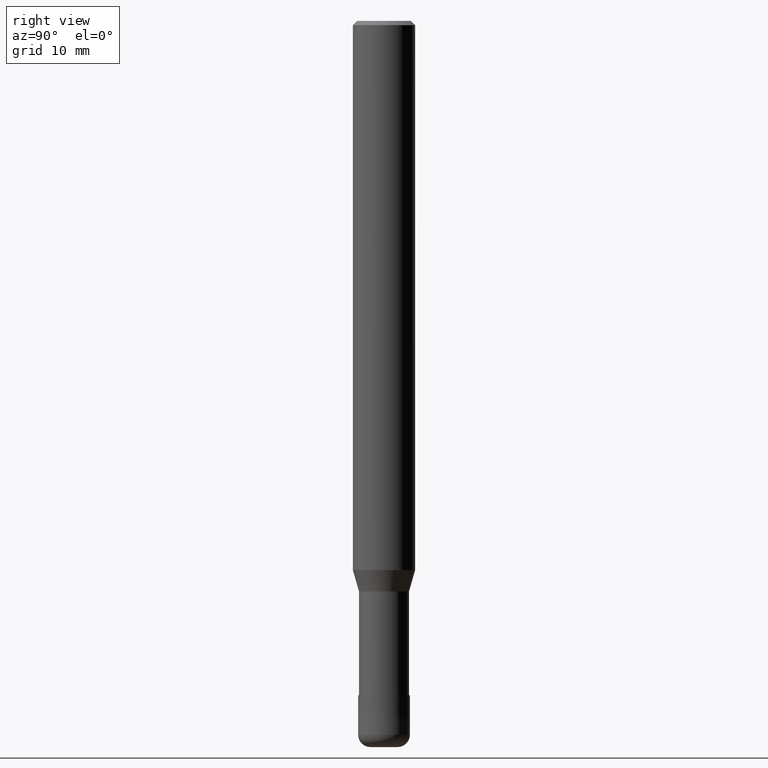
[diagram: clean part render]
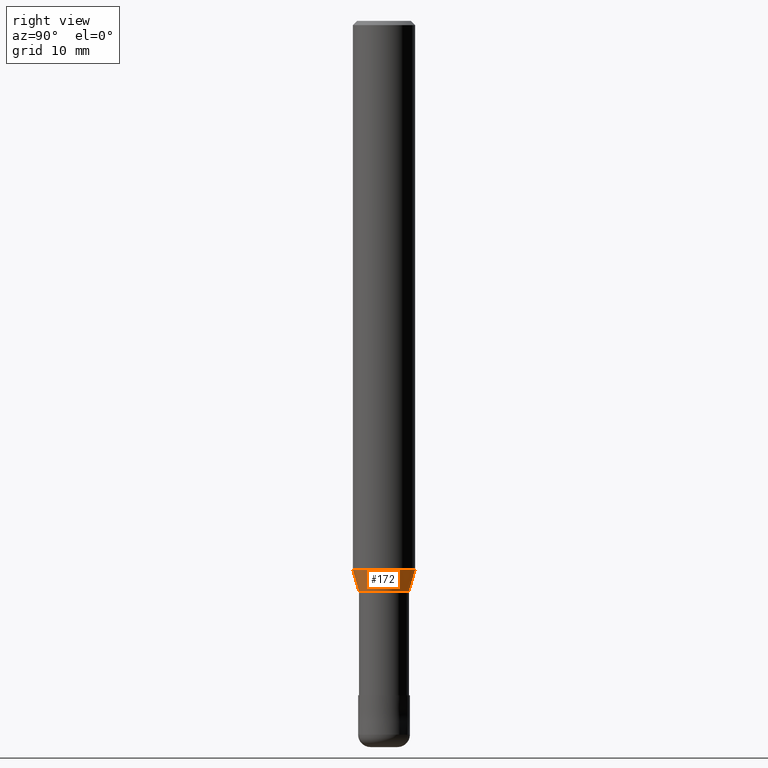
[diagram: same view with one face highlighted and labeled with its STEP entity id]
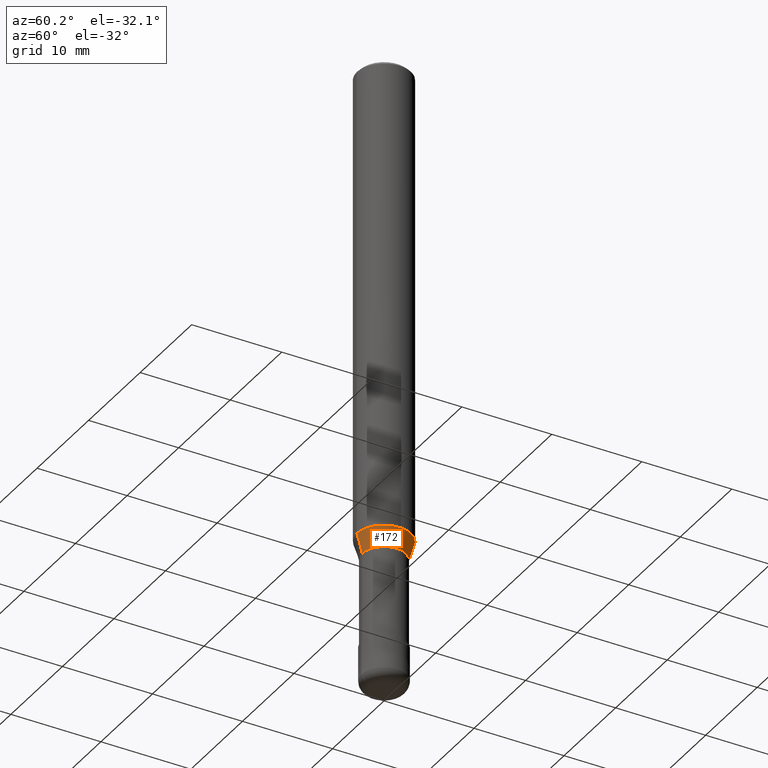
[diagram: same view with one face highlighted and labeled with its STEP entity id]
A machine part, right view. The second image highlights one B-rep face of the part: STEP entity #172.
A second angle (auxiliary view) of the same face is appended — the face is thin or edge-on in the first view.
In plain terms, the highlighted conical surface has half-angle 15.997 deg.
Its self-contained STEP definition (entity closure, byte-faithful):
#110=EDGE_CURVE('',#140,#226,#265,.T.);
#118=EDGE_CURVE('',#126,#140,#275,.T.);
#120=VERTEX_POINT('',#277);
#126=VERTEX_POINT('',#285);
#140=VERTEX_POINT('',#302);
#172=ADVANCED_FACE('',(#336),#337,.T.);
#208=EDGE_CURVE('',#126,#120,#375,.T.);
#210=EDGE_CURVE('',#226,#120,#377,.T.);
#226=VERTEX_POINT('',#395);
#265=CIRCLE('',#432,2.40995);
#275=LINE('',#445,#446);
#277=CARTESIAN_POINT('',(3.67375783114944E-016,-2.99995,-52.942));
#285=CARTESIAN_POINT('',(0.0,2.99995,-52.942));
#302=CARTESIAN_POINT('',(0.0,2.40995,-55.0));
#336=FACE_OUTER_BOUND('',#519,.T.);
#337=CONICAL_SURFACE('',#520,2.70495,0.279197900775595);
#375=CIRCLE('',#571,2.99995);
#377=LINE('',#574,#575);
#395=CARTESIAN_POINT('',(2.95124008239424E-016,-2.40995,-55.0));
#432=AXIS2_PLACEMENT_3D('',#622,#623,#624);
#445=CARTESIAN_POINT('',(-3.31249895677184E-016,2.70495,-53.971));
#446=VECTOR('',#642,1.0);
#519=EDGE_LOOP('',(#709,#710,#711,#712));
#520=AXIS2_PLACEMENT_3D('',#713,#714,#715);
#571=AXIS2_PLACEMENT_3D('',#762,#763,#764);
#574=CARTESIAN_POINT('',(3.31249895677184E-016,-2.70495,-53.971));
#575=VECTOR('',#765,1.0);
#622=CARTESIAN_POINT('',(0.0,0.0,-55.0));
#623=DIRECTION('',(0.0,0.0,-1.0));
#624=DIRECTION('',(0.0,1.0,0.0));
#642=DIRECTION('',(3.37482772097103E-017,-0.275584697926574,-0.961276793784558));
#709=ORIENTED_EDGE('',*,*,#118,.F.);
#710=ORIENTED_EDGE('',*,*,#208,.T.);
#711=ORIENTED_EDGE('',*,*,#210,.F.);
#712=ORIENTED_EDGE('',*,*,#110,.F.);
#713=CARTESIAN_POINT('',(0.0,0.0,-53.971));
#714=DIRECTION('',(-0.0,-0.0,1.0));
#715=DIRECTION('',(0.0,1.0,0.0));
#762=CARTESIAN_POINT('',(0.0,0.0,-52.942));
#763=DIRECTION('',(0.0,0.0,-1.0));
#764=DIRECTION('',(0.0,1.0,0.0));
#765=DIRECTION('',(3.37482772097103E-017,-0.275584697926574,0.961276793784558));